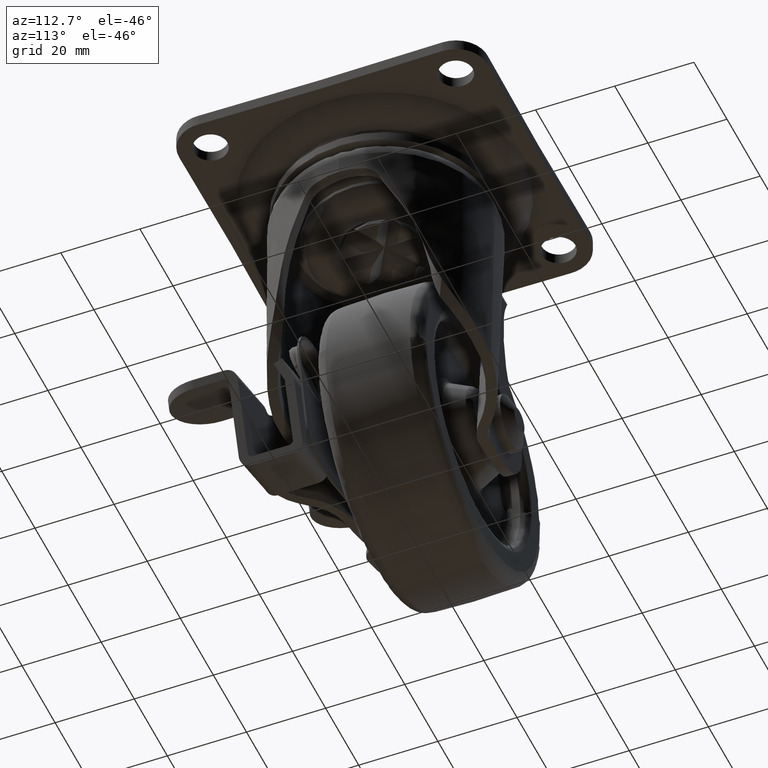
[diagram: clean part render]
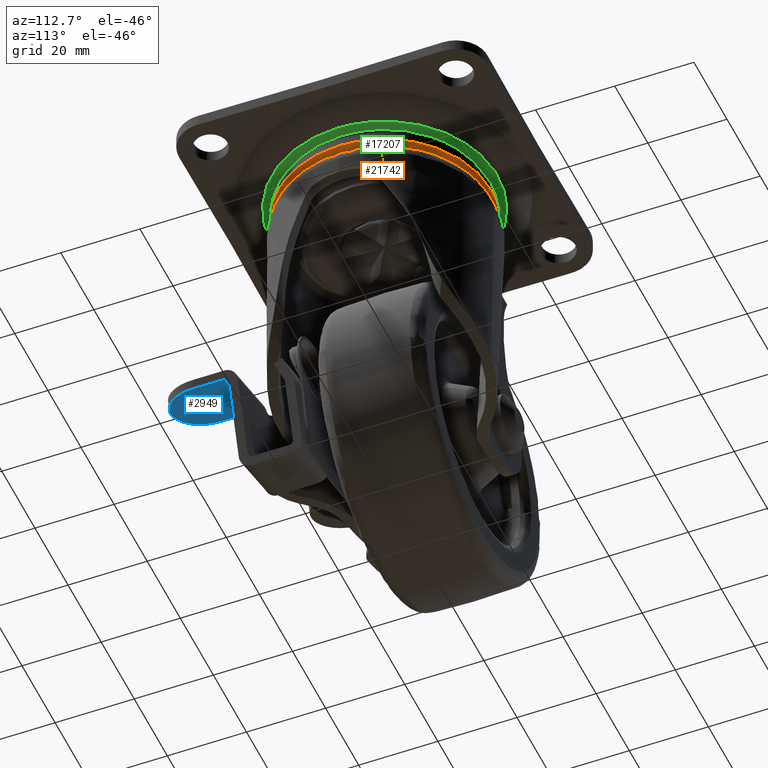
[diagram: same view with three faces highlighted in distinct colors, each labeled with its STEP entity id]
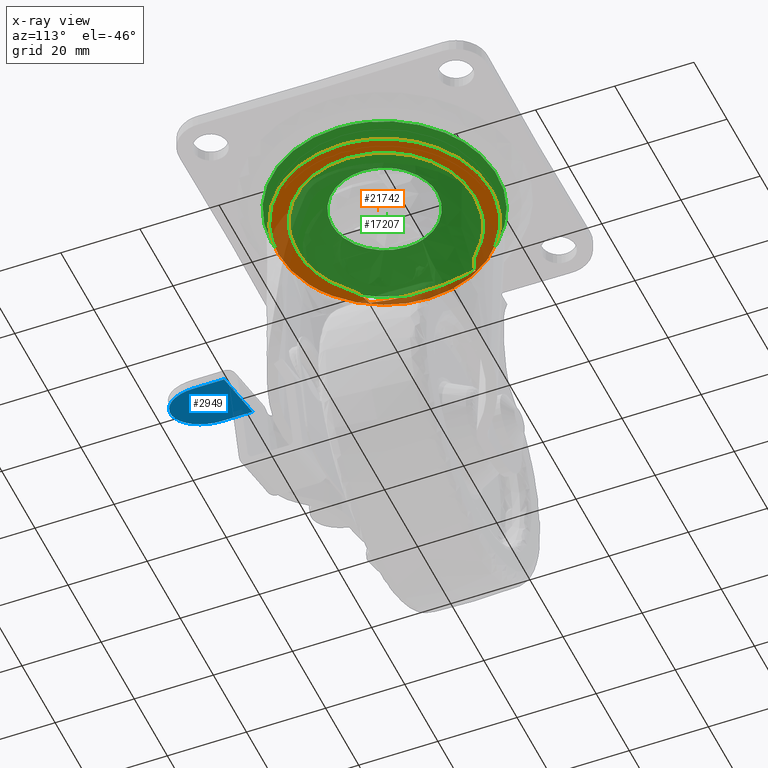
[diagram: x-ray of the same camera — body ghosted, the three highlighted faces saturated]
A machine part, auxiliary view with three faces highlighted in distinct colors.
The next image is the same camera in x-ray (body ghosted, the three faces saturated) — at least one of them is partly hidden behind the body in this view.
Their STEP definitions:

[orange] entity #21742 — the highlighted face is a freeform B-spline surface patch.
#19822=CARTESIAN_POINT('',(19.503865542615021,-18.508477186135920,-10.679282000000120));
#19823=VERTEX_POINT('',#19822);
#19829=CARTESIAN_POINT('',(26.888000000000002,0.0,-10.679282000000120));
#19830=VERTEX_POINT('',#19829);
#19831=CARTESIAN_POINT('',(26.888000000000002,0.0,-10.679282000000120));
#19832=CARTESIAN_POINT('',(26.888034766278651,-1.169543840439390,-10.679282000000111));
#19833=CARTESIAN_POINT('',(26.724746791603600,-3.668114964244473,-10.679282000000160));
#19834=CARTESIAN_POINT('',(25.912414759753510,-7.582773678796750,-10.679282000000100));
#19835=CARTESIAN_POINT('',(24.590591180742951,-11.075110877657369,-10.679282000000120));
#19836=CARTESIAN_POINT('',(22.541433642649839,-14.868582465159770,-10.679282000000150));
#19837=CARTESIAN_POINT('',(20.821498865487641,-17.120451033835181,-10.679282000000081));
#19838=CARTESIAN_POINT('',(19.503865542615021,-18.508477186135920,-10.679282000000120));
#19839=B_SPLINE_CURVE_WITH_KNOTS('',3,(#19831,#19832,#19833,#19834,#19835,#19836,#19837,#19838),.UNSPECIFIED.,.F.,.U.,(4,1,1,1,1,4),(0.000000027362614,3.508635219409179,7.495740012111181,11.961259859047360,14.672478933737070,20.413889136271450),.UNSPECIFIED.);
#19840=EDGE_CURVE('',#19830,#19823,#19839,.T.);
#19842=CARTESIAN_POINT('',(0.000003362677113,26.887999999999789,-10.679282000000120));
#19843=VERTEX_POINT('',#19842);
#19844=CARTESIAN_POINT('',(0.000003362677113,26.887999999999789,-10.679282000000120));
#19845=CARTESIAN_POINT('',(1.649841419013745,26.888167732409549,-10.679282000000139));
#19846=CARTESIAN_POINT('',(4.179493252391628,26.654395552810868,-10.679282000000111));
#19847=CARTESIAN_POINT('',(7.822308227241522,25.789268459627610,-10.679282000000130));
#19848=CARTESIAN_POINT('',(10.981059510209690,24.637155344342109,-10.679282000000111));
#19849=CARTESIAN_POINT('',(14.633725179708950,22.699293652890152,-10.679282000000111));
#19850=CARTESIAN_POINT('',(17.798249563646159,20.291558727472658,-10.679282000000230));
#19851=CARTESIAN_POINT('',(20.444336500789429,17.562782782921509,-10.679282000000009));
#19852=CARTESIAN_POINT('',(22.612964459075400,14.712667193271180,-10.679282000000271));
#19853=CARTESIAN_POINT('',(24.361299028891029,11.581737534376460,-10.679281999999890));
#19854=CARTESIAN_POINT('',(25.860165319615419,7.731556744360524,-10.679281999999990));
#19855=CARTESIAN_POINT('',(26.707149713254580,3.959595925096707,-10.679282000000759));
#19856=CARTESIAN_POINT('',(26.888019617883739,1.154866175060528,-10.679281999999320));
#19857=CARTESIAN_POINT('',(26.888000000000002,0.0,-10.679282000000120));
#19858=B_SPLINE_CURVE_WITH_KNOTS('',3,(#19844,#19845,#19846,#19847,#19848,#19849,#19850,#19851,#19852,#19853,#19854,#19855,#19856,#19857),.UNSPECIFIED.,.F.,.U.,(4,1,1,1,1,1,1,1,1,1,1,4),(0.000000114637736,4.949474445065583,7.589202534098533,11.218845624731610,15.013478306032390,19.962959880160550,23.097607094807199,26.397234392836140,30.686826273740710,33.821514668776750,38.771020473910667,42.235635994954777),.UNSPECIFIED.);
#19859=EDGE_CURVE('',#19843,#19830,#19858,.T.);
#19861=CARTESIAN_POINT('',(-26.888000000000002,0.0,-10.679282000000120));
#19862=VERTEX_POINT('',#19861);
#19863=CARTESIAN_POINT('',(-26.888000000000002,0.0,-10.679282000000120));
#19864=CARTESIAN_POINT('',(-26.888271267501899,1.869808115747313,-10.679282000000160));
#19865=CARTESIAN_POINT('',(-26.502174069577219,5.554346620242090,-10.679282000000089));
#19866=CARTESIAN_POINT('',(-24.968322088104181,10.344926229284750,-10.679282000000130));
#19867=CARTESIAN_POINT('',(-22.732720851433349,14.589763794949549,-10.679282000000111));
#19868=CARTESIAN_POINT('',(-20.291551933971039,17.798245645096419,-10.679282000000089));
#19869=CARTESIAN_POINT('',(-17.562788817052400,20.444344798111150,-10.679282000000059));
#19870=CARTESIAN_POINT('',(-14.800335382239570,22.546190692864990,-10.679282000000081));
#19871=CARTESIAN_POINT('',(-11.249899643771711,24.557639644769800,-10.679282000000221));
#19872=CARTESIAN_POINT('',(-6.269049500842757,26.374526725463902,-10.679282000000050));
#19873=CARTESIAN_POINT('',(-2.309815693727519,26.888674825915281,-10.679281999999979));
#19874=CARTESIAN_POINT('',(0.000003362677113,26.887999999999789,-10.679282000000120));
#19875=B_SPLINE_CURVE_WITH_KNOTS('',3,(#19863,#19864,#19865,#19866,#19867,#19868,#19869,#19870,#19871,#19872,#19873,#19874),.UNSPECIFIED.,.F.,.U.,(4,1,1,1,1,1,1,1,1,4),(0.000000114406774,5.609387263307603,11.053860425037580,15.013479653447529,19.962961673761530,23.097609164697531,26.397236762571598,30.356865768622260,35.306364626762523,42.235639785481553),.UNSPECIFIED.);
#19876=EDGE_CURVE('',#19862,#19843,#19875,.T.);
#19878=CARTESIAN_POINT('',(-17.362712396301550,-20.530484817063218,-10.679282000000120));
#19879=VERTEX_POINT('',#19878);
#19880=CARTESIAN_POINT('',(-17.362712396301550,-20.530484817063218,-10.679282000000120));
#19881=CARTESIAN_POINT('',(-18.477547622254040,-19.587732426832861,-10.679282000000120));
#19882=CARTESIAN_POINT('',(-20.899287394690830,-17.175584372695390,-10.679282000000130));
#19883=CARTESIAN_POINT('',(-23.549422875501570,-13.279644816668061,-10.679282000000130));
#19884=CARTESIAN_POINT('',(-25.255113167360989,-9.432526693824860,-10.679282000000120));
#19885=CARTESIAN_POINT('',(-26.517478680882402,-5.231545113345966,-10.679282000000070));
#19886=CARTESIAN_POINT('',(-26.888498699279239,-2.129258889064473,-10.679282000000191));
#19887=CARTESIAN_POINT('',(-26.888000000000002,0.0,-10.679282000000120));
#19888=B_SPLINE_CURVE_WITH_KNOTS('',3,(#19880,#19881,#19882,#19883,#19884,#19885,#19886,#19887),.UNSPECIFIED.,.F.,.U.,(4,1,1,1,1,4),(0.000000039015255,4.380071117644192,10.220170978073289,14.052717356325321,16.972776875279042,23.360383323077340),.UNSPECIFIED.);
#19889=EDGE_CURVE('',#19879,#19862,#19888,.T.);
#19926=CARTESIAN_POINT('',(-0.000003362677461,-26.887999999999789,-10.679282000000120));
#19927=VERTEX_POINT('',#19926);
#19928=CARTESIAN_POINT('',(-0.000003362677461,-26.887999999999789,-10.679282000000120));
#19929=CARTESIAN_POINT('',(-2.015375703552460,-26.888447403062131,-10.679282000000221));
#19930=CARTESIAN_POINT('',(-5.062736329903994,-26.543646384990989,-10.679281999999930));
#19931=CARTESIAN_POINT('',(-9.129226183268747,-25.363454361553810,-10.679282000000310));
#19932=CARTESIAN_POINT('',(-13.066867586233160,-23.671635001114598,-10.679281999999979));
#19933=CARTESIAN_POINT('',(-15.786623127753680,-21.863985177579611,-10.679282000000191));
#19934=CARTESIAN_POINT('',(-17.362712396301550,-20.530484817063218,-10.679282000000120));
#19935=B_SPLINE_CURVE_WITH_KNOTS('',3,(#19928,#19929,#19930,#19931,#19932,#19933,#19934),.UNSPECIFIED.,.F.,.U.,(4,1,1,1,4),(0.000000020932887,6.045984351372637,9.142705464890836,12.681801905030669,18.875254096918489),.UNSPECIFIED.);
#19936=EDGE_CURVE('',#19927,#19879,#19935,.T.);
#19938=CARTESIAN_POINT('',(19.503865542615021,-18.508477186135920,-10.679282000000120));
#19939=CARTESIAN_POINT('',(18.135031767801770,-19.951544009734022,-10.679282000000120));
#19940=CARTESIAN_POINT('',(15.992905045248900,-21.757245947280481,-10.679282000000130));
#19941=CARTESIAN_POINT('',(12.199423881585780,-24.058523046364851,-10.679282000000150));
#19942=CARTESIAN_POINT('',(8.848314793370371,-25.510913352480731,-10.679282000000031));
#19943=CARTESIAN_POINT('',(4.489304374128034,-26.625897480612320,-10.679282000000271));
#19944=CARTESIAN_POINT('',(1.648000960830044,-26.888179817504170,-10.679282000000040));
#19945=CARTESIAN_POINT('',(-0.000003362677461,-26.887999999999789,-10.679282000000120));
#19946=B_SPLINE_CURVE_WITH_KNOTS('',3,(#19938,#19939,#19940,#19941,#19942,#19943,#19944,#19945),.UNSPECIFIED.,.F.,.U.,(4,1,1,1,1,4),(0.000000031624854,5.966887557739332,8.353644860347911,13.297610479135860,16.877763380984600,21.821751678115412),.UNSPECIFIED.);
#19947=EDGE_CURVE('',#19823,#19927,#19946,.T.);
#21620=CARTESIAN_POINT('',(29.574111600582292,-29.574111600582061,-10.679282000000120));
#21621=CARTESIAN_POINT('',(-29.574112562172111,-29.574111600582061,-10.679282000000120));
#21622=CARTESIAN_POINT('',(29.574111600582292,29.574112562171880,-10.679282000000120));
#21623=CARTESIAN_POINT('',(-29.574112562172111,29.574112562171880,-10.679282000000120));
#21624=B_SPLINE_SURFACE_WITH_KNOTS('',1,1,((#21620,#21622),(#21621,#21623)),.UNSPECIFIED.,.F.,.F.,.U.,(2,2),(2,2),(0.0,59.148224162754410),(0.0,59.148224162753941),.UNSPECIFIED.);
#21625=ORIENTED_EDGE('',*,*,#19876,.T.);
#21626=ORIENTED_EDGE('',*,*,#19859,.T.);
#21627=ORIENTED_EDGE('',*,*,#19840,.T.);
#21628=ORIENTED_EDGE('',*,*,#19947,.T.);
#21629=ORIENTED_EDGE('',*,*,#19936,.T.);
#21630=ORIENTED_EDGE('',*,*,#19889,.T.);
#21631=EDGE_LOOP('',(#21625,#21626,#21627,#21628,#21629,#21630));
#21632=FACE_OUTER_BOUND('',#21631,.T.);
#21633=CARTESIAN_POINT('',(-22.797527504923899,13.398797792103160,-10.679282000000120));
#21634=VERTEX_POINT('',#21633);
#21635=CARTESIAN_POINT('',(-22.797527504923899,-13.398797792103160,-10.679282000000120));
#21636=VERTEX_POINT('',#21635);
#21637=CARTESIAN_POINT('',(-22.797527504923899,13.398797792103160,-10.679282000000120));
#21638=CARTESIAN_POINT('',(-23.645217901609080,9.978438628420866,-10.679282000000081));
#21639=CARTESIAN_POINT('',(-24.416850983434351,4.796929287381611,-10.679282000000160));
#21640=CARTESIAN_POINT('',(-24.485339880255399,-4.233126793123027,-10.679282000000070));
#21641=CARTESIAN_POINT('',(-23.713224372311998,-9.704828610800927,-10.679282000000191));
#21642=CARTESIAN_POINT('',(-22.797527504923899,-13.398797792103160,-10.679282000000120));
#21643=B_SPLINE_CURVE_WITH_KNOTS('',3,(#21637,#21638,#21639,#21640,#21641,#21642),.UNSPECIFIED.,.F.,.U.,(4,1,1,4),(6.904152E-009,10.571403696179701,15.645654997697131,27.062769204439061),.UNSPECIFIED.);
#21644=EDGE_CURVE('',#21634,#21636,#21643,.T.);
#21645=ORIENTED_EDGE('',*,*,#21644,.T.);
#21646=CARTESIAN_POINT('',(-17.214441086970751,-16.129979643924550,-10.679282000000120));
#21647=VERTEX_POINT('',#21646);
#21648=CARTESIAN_POINT('',(-22.797527504923899,-13.398797792103160,-10.679282000000120));
#21649=CARTESIAN_POINT('',(-22.276139148350389,-13.472530814729270,-10.679282000000111));
#21650=CARTESIAN_POINT('',(-21.116083848401679,-13.730854053324190,-10.679282000000120));
#21651=CARTESIAN_POINT('',(-19.163336462330850,-14.547173085697191,-10.679282000000139));
#21652=CARTESIAN_POINT('',(-17.876185271135419,-15.488615274973190,-10.679282000000089));
#21653=CARTESIAN_POINT('',(-17.214441086970751,-16.129979643924550,-10.679282000000120));
#21654=B_SPLINE_CURVE_WITH_KNOTS('',3,(#21648,#21649,#21650,#21651,#21652,#21653),.UNSPECIFIED.,.F.,.U.,(4,1,1,4),(0.000000029805333,1.579741568621220,3.554401686633980,6.318966185068758),.UNSPECIFIED.);
#21655=EDGE_CURVE('',#21636,#21647,#21654,.T.);
#21656=ORIENTED_EDGE('',*,*,#21655,.T.);
#21657=CARTESIAN_POINT('',(-1.474192120225080,-22.499179236834799,-10.679282000000120));
#21658=VERTEX_POINT('',#21657);
#21659=CARTESIAN_POINT('',(-17.214441086970751,-16.129979643924550,-10.679282000000120));
#21660=CARTESIAN_POINT('',(-16.465458195323190,-16.855214209778019,-10.679282000000130));
#21661=CARTESIAN_POINT('',(-14.519565161595670,-18.494769983513830,-10.679282000000130));
#21662=CARTESIAN_POINT('',(-11.457243346951561,-20.296542002779731,-10.679282000000059));
#21663=CARTESIAN_POINT('',(-8.233822319314738,-21.533466298609358,-10.679282000000180));
#21664=CARTESIAN_POINT('',(-5.055209172687867,-22.301948962786248,-10.679281999999990));
#21665=CARTESIAN_POINT('',(-2.788745254682120,-22.499658226117621,-10.679282000000230));
#21666=CARTESIAN_POINT('',(-1.474192120225080,-22.499179236834799,-10.679282000000120));
#21667=B_SPLINE_CURVE_WITH_KNOTS('',3,(#21659,#21660,#21661,#21662,#21663,#21664,#21665,#21666),.UNSPECIFIED.,.F.,.U.,(4,1,1,1,1,4),(0.000000027847925,3.127707797637916,7.615313781979614,10.607010831961810,13.462764105874580,17.406401177718791),.UNSPECIFIED.);
#21668=EDGE_CURVE('',#21647,#21658,#21667,.T.);
#21669=ORIENTED_EDGE('',*,*,#21668,.T.);
#21670=CARTESIAN_POINT('',(0.000960000000105,-22.499179236834799,-10.679282000000120));
#21671=VERTEX_POINT('',#21670);
#21672=CARTESIAN_POINT('',(-1.474192120225080,-22.499179236834799,-10.679282000000120));
#21673=CARTESIAN_POINT('',(0.000960000000105,-22.499179236834799,-10.679282000000120));
#21674=QUASI_UNIFORM_CURVE('',1,(#21672,#21673),.UNSPECIFIED.,.F.,.U.);
#21675=EDGE_CURVE('',#21658,#21671,#21674,.T.);
#21676=ORIENTED_EDGE('',*,*,#21675,.T.);
#21677=CARTESIAN_POINT('',(22.499960000000002,0.0,-10.679282000000120));
#21678=VERTEX_POINT('',#21677);
#21679=CARTESIAN_POINT('',(0.000960000000105,-22.499179236834799,-10.679282000000120));
#21680=CARTESIAN_POINT('',(1.519544319019049,-22.499373363325429,-10.679282000000120));
#21681=CARTESIAN_POINT('',(4.188482226035767,-22.227905635816722,-10.679282000000120));
#21682=CARTESIAN_POINT('',(8.181461940516689,-21.083262034136521,-10.679282000000120));
#21683=CARTESIAN_POINT('',(11.963020742717450,-19.237801262456429,-10.679282000000180));
#21684=CARTESIAN_POINT('',(15.151458287044610,-16.780689018259402,-10.679282000000081));
#21685=CARTESIAN_POINT('',(17.966713509935801,-13.731305627568450,-10.679282000000009));
#21686=CARTESIAN_POINT('',(19.976442620865441,-10.621592355065831,-10.679282000000409));
#21687=CARTESIAN_POINT('',(21.265122973577189,-7.509387145511053,-10.679282000000040));
#21688=CARTESIAN_POINT('',(22.219540880472309,-4.141431492588562,-10.679282000000130));
#21689=CARTESIAN_POINT('',(22.500389498313311,-1.748718311678798,-10.679282000000160));
#21690=CARTESIAN_POINT('',(22.499960000000002,0.0,-10.679282000000120));
#21691=B_SPLINE_CURVE_WITH_KNOTS('',3,(#21679,#21680,#21681,#21682,#21683,#21684,#21685,#21686,#21687,#21688,#21689,#21690),.UNSPECIFIED.,.F.,.U.,(4,1,1,1,1,1,1,1,1,4),(0.000000121797704,4.555725460716474,8.007070261248238,12.424785419647041,17.118608889772720,20.017676793840700,24.849530063337451,28.162826617161560,30.095561483897079,35.341571100536171),.UNSPECIFIED.);
#21692=EDGE_CURVE('',#21671,#21678,#21691,.T.);
#21693=ORIENTED_EDGE('',*,*,#21692,.T.);
#21694=CARTESIAN_POINT('',(0.000960000000102,22.499179236834799,-10.679282000000120));
#21695=VERTEX_POINT('',#21694);
#21696=CARTESIAN_POINT('',(22.499960000000002,0.0,-10.679282000000120));
#21697=CARTESIAN_POINT('',(22.500217573064131,1.610620382166461,-10.679282000000160));
#21698=CARTESIAN_POINT('',(22.187358682715121,4.509639798527457,-10.679282000000040));
#21699=CARTESIAN_POINT('',(21.010953630537699,8.303577746416776,-10.679282000000221));
#21700=CARTESIAN_POINT('',(19.544891657526389,11.284078359066971,-10.679282000000020));
#21701=CARTESIAN_POINT('',(17.974927394511941,13.618106309495561,-10.679282000000130));
#21702=CARTESIAN_POINT('',(16.025562585415461,15.892143590490640,-10.679282000000210));
#21703=CARTESIAN_POINT('',(13.507299838325491,18.132840638664071,-10.679282000000150));
#21704=CARTESIAN_POINT('',(10.523654638054390,19.983877680256310,-10.679281999999841));
#21705=CARTESIAN_POINT('',(7.387847244299644,21.328041250907589,-10.679282000000351));
#21706=CARTESIAN_POINT('',(4.004427020296995,22.253234633694731,-10.679281999999770));
#21707=CARTESIAN_POINT('',(1.427502173444245,22.499334992917831,-10.679282000000320));
#21708=CARTESIAN_POINT('',(0.000960000000102,22.499179236834799,-10.679282000000120));
#21709=B_SPLINE_CURVE_WITH_KNOTS('',3,(#21696,#21697,#21698,#21699,#21700,#21701,#21702,#21703,#21704,#21705,#21706,#21707,#21708),.UNSPECIFIED.,.F.,.U.,(4,1,1,1,1,1,1,1,1,1,4),(0.000000121726913,4.831829513118784,8.697339208950638,11.872577129769560,14.771705042692981,17.118608674336031,20.845972912335782,24.849529749950481,27.610611076119071,31.061965254041208,35.341570654539943),.UNSPECIFIED.);
#21710=EDGE_CURVE('',#21678,#21695,#21709,.T.);
#21711=ORIENTED_EDGE('',*,*,#21710,.T.);
#21712=CARTESIAN_POINT('',(-1.474192120225070,22.499179236834799,-10.679282000000120));
#21713=VERTEX_POINT('',#21712);
#21714=CARTESIAN_POINT('',(0.000960000000102,22.499179236834799,-10.679282000000120));
#21715=CARTESIAN_POINT('',(-1.474192120225070,22.499179236834799,-10.679282000000120));
#21716=QUASI_UNIFORM_CURVE('',1,(#21714,#21715),.UNSPECIFIED.,.F.,.U.);
#21717=EDGE_CURVE('',#21695,#21713,#21716,.T.);
#21718=ORIENTED_EDGE('',*,*,#21717,.T.);
#21719=CARTESIAN_POINT('',(-17.214441086970801,16.129979643924500,-10.679282000000120));
#21720=VERTEX_POINT('',#21719);
#21721=CARTESIAN_POINT('',(-1.474192120225070,22.499179236834799,-10.679282000000120));
#21722=CARTESIAN_POINT('',(-3.468769986790806,22.500426438714300,-10.679282000000120));
#21723=CARTESIAN_POINT('',(-6.550861041575425,22.090057578181071,-10.679282000000111));
#21724=CARTESIAN_POINT('',(-10.797993100523490,20.604811648576931,-10.679282000000130));
#21725=CARTESIAN_POINT('',(-14.150829352702130,18.765559915665872,-10.679282000000111));
#21726=CARTESIAN_POINT('',(-16.270129535510421,17.044481141604560,-10.679282000000139));
#21727=CARTESIAN_POINT('',(-17.214441086970801,16.129979643924500,-10.679282000000120));
#21728=B_SPLINE_CURVE_WITH_KNOTS('',3,(#21721,#21722,#21723,#21724,#21725,#21726,#21727),.UNSPECIFIED.,.F.,.U.,(4,1,1,1,4),(0.000000027849321,5.983473589516636,9.247159153341295,13.462788973494840,17.406433329729900),.UNSPECIFIED.);
#21729=EDGE_CURVE('',#21713,#21720,#21728,.T.);
#21730=ORIENTED_EDGE('',*,*,#21729,.T.);
#21731=CARTESIAN_POINT('',(-17.214441086970801,16.129979643924500,-10.679282000000120));
#21732=CARTESIAN_POINT('',(-17.710842349063839,15.649081955967100,-10.679282000000150));
#21733=CARTESIAN_POINT('',(-18.647371456520808,14.913138643910081,-10.679282000000081));
#21734=CARTESIAN_POINT('',(-20.511501919818020,13.920251268203490,-10.679282000000130));
#21735=CARTESIAN_POINT('',(-21.885016774259011,13.527585347471151,-10.679282000000130));
#21736=CARTESIAN_POINT('',(-22.797527504923899,13.398797792103160,-10.679282000000120));
#21737=B_SPLINE_CURVE_WITH_KNOTS('',3,(#21731,#21732,#21733,#21734,#21735,#21736),.UNSPECIFIED.,.F.,.U.,(4,1,1,4),(0.000000029794761,2.073408928993058,3.554389104010710,6.318943809384388),.UNSPECIFIED.);
#21738=EDGE_CURVE('',#21720,#21634,#21737,.T.);
#21739=ORIENTED_EDGE('',*,*,#21738,.T.);
#21740=EDGE_LOOP('',(#21645,#21656,#21669,#21676,#21693,#21711,#21718,#21730,#21739));
#21741=FACE_BOUND('',#21740,.T.);
#21742=ADVANCED_FACE('',(#21632,#21741),#21624,.T.);

[blue] entity #2949 — the highlighted face is a freeform B-spline surface patch.
#711=CARTESIAN_POINT('',(6.159242446251650,-51.208029000000003,-61.107860482847997));
#712=VERTEX_POINT('',#711);
#713=CARTESIAN_POINT('',(-2.414775000000000,-42.208029000000003,-58.371768999999901));
#714=VERTEX_POINT('',#713);
#715=CARTESIAN_POINT('',(6.159242446251650,-51.208029000000003,-61.107860482847997));
#716=CARTESIAN_POINT('',(5.527920790191182,-51.208162086730873,-60.906396721325287));
#717=CARTESIAN_POINT('',(4.475790674205281,-51.085449994619033,-60.570646967228377));
#718=CARTESIAN_POINT('',(2.860386619618170,-50.571120240529382,-60.055148450597571));
#719=CARTESIAN_POINT('',(1.231475312510367,-49.684283084793122,-59.535339576678780));
#720=CARTESIAN_POINT('',(-0.120703033803030,-48.429155245780919,-59.103840144839580));
#721=CARTESIAN_POINT('',(-1.176283055774700,-46.953893524398232,-58.766989476446717));
#722=CARTESIAN_POINT('',(-1.834287949813973,-45.602513369831229,-58.557010712403077));
#723=CARTESIAN_POINT('',(-2.304555814329449,-43.938310026472983,-58.406941517089813));
#724=CARTESIAN_POINT('',(-2.414869228950472,-42.833888763734222,-58.371738930196109));
#725=CARTESIAN_POINT('',(-2.414775000000000,-42.208029000000003,-58.371768999999901));
#726=B_SPLINE_CURVE_WITH_KNOTS('',3,(#715,#716,#717,#718,#719,#720,#721,#722,#723,#724,#725),.UNSPECIFIED.,.F.,.U.,(4,1,1,1,1,1,1,1,4),(0.000000198038880,1.988040734186317,3.313418867587931,5.301476328013084,7.731288435081716,8.946196145458803,10.823837984081450,12.259685932547510,14.137254642881560),.UNSPECIFIED.);
#727=EDGE_CURVE('',#712,#714,#726,.T.);
#775=CARTESIAN_POINT('',(14.733261386545200,-42.208029000000003,-63.843952442466303));
#776=VERTEX_POINT('',#775);
#777=CARTESIAN_POINT('',(14.733261386545200,-42.208029000000003,-63.843952442466303));
#778=CARTESIAN_POINT('',(14.733747147343040,-43.165316235952147,-63.844107455678149));
#779=CARTESIAN_POINT('',(14.507222610472949,-44.637524031682453,-63.771820239110973));
#780=CARTESIAN_POINT('',(13.661151431554460,-46.709357592150369,-63.501826836247631));
#781=CARTESIAN_POINT('',(12.634211348803550,-48.220293157963269,-63.174115581703262));
#782=CARTESIAN_POINT('',(11.400646403308320,-49.379147667393603,-62.780467380950242));
#783=CARTESIAN_POINT('',(10.187758026899230,-50.196374554668687,-62.393417368853363));
#784=CARTESIAN_POINT('',(8.508857944533801,-50.964846873693801,-61.857656362445653));
#785=CARTESIAN_POINT('',(7.071212045747023,-51.208583174482833,-61.398883013352773));
#786=CARTESIAN_POINT('',(6.159242446251650,-51.208029000000003,-61.107860482847997));
#787=B_SPLINE_CURVE_WITH_KNOTS('',3,(#777,#778,#779,#780,#781,#782,#783,#784,#785,#786),.UNSPECIFIED.,.F.,.U.,(4,1,1,1,1,1,1,4),(0.000000197876687,2.871621153055507,4.417910269271181,6.737305326767578,8.393969725665009,9.608894523361631,11.265640041109810,14.137255645887590),.UNSPECIFIED.);
#788=EDGE_CURVE('',#776,#712,#787,.T.);
#2303=CARTESIAN_POINT('',(14.733261386545200,-34.383177999999887,-63.843952442466303));
#2304=VERTEX_POINT('',#2303);
#2317=CARTESIAN_POINT('',(-2.414775000000000,-34.383177999999887,-58.371768999999901));
#2318=VERTEX_POINT('',#2317);
#2319=CARTESIAN_POINT('',(-2.414775000000000,-34.383177999999887,-58.371768999999901));
#2320=CARTESIAN_POINT('',(14.733261386545200,-34.383177999999887,-63.843952442466303));
#2321=QUASI_UNIFORM_CURVE('',1,(#2319,#2320),.UNSPECIFIED.,.F.,.U.);
#2322=EDGE_CURVE('',#2318,#2304,#2321,.T.);
#2929=CARTESIAN_POINT('',(15.589805448869930,-52.048432110005962,-64.117287892073435));
#2930=CARTESIAN_POINT('',(-3.271319828901676,-52.048432110005962,-58.098433305767081));
#2931=CARTESIAN_POINT('',(15.589805448869930,-33.542777447234073,-64.117287892073435));
#2932=CARTESIAN_POINT('',(-3.271319828901677,-33.542777447234073,-58.098433305767081));
#2933=B_SPLINE_SURFACE_WITH_KNOTS('',1,1,((#2929,#2931),(#2930,#2932)),.UNSPECIFIED.,.F.,.F.,.U.,(2,2),(2,2),(0.0,19.798198334063031),(0.0,18.505654662771889),.UNSPECIFIED.);
#2934=ORIENTED_EDGE('',*,*,#788,.T.);
#2935=ORIENTED_EDGE('',*,*,#727,.T.);
#2936=CARTESIAN_POINT('',(-2.414775000000000,-42.208029000000003,-58.371768999999901));
#2937=CARTESIAN_POINT('',(-2.414775000000000,-34.383177999999887,-58.371768999999901));
#2938=QUASI_UNIFORM_CURVE('',1,(#2936,#2937),.UNSPECIFIED.,.F.,.U.);
#2939=EDGE_CURVE('',#714,#2318,#2938,.T.);
#2940=ORIENTED_EDGE('',*,*,#2939,.T.);
#2941=ORIENTED_EDGE('',*,*,#2322,.T.);
#2942=CARTESIAN_POINT('',(14.733261386545200,-42.208029000000003,-63.843952442466303));
#2943=CARTESIAN_POINT('',(14.733261386545200,-34.383177999999887,-63.843952442466303));
#2944=QUASI_UNIFORM_CURVE('',1,(#2942,#2943),.UNSPECIFIED.,.F.,.U.);
#2945=EDGE_CURVE('',#776,#2304,#2944,.T.);
#2946=ORIENTED_EDGE('',*,*,#2945,.F.);
#2947=EDGE_LOOP('',(#2934,#2935,#2940,#2941,#2946));
#2948=FACE_OUTER_BOUND('',#2947,.T.);
#2949=ADVANCED_FACE('',(#2948),#2933,.T.);

[green] entity #17207 — the highlighted face is a freeform B-spline surface patch.
#15472=CARTESIAN_POINT('',(9.684105408501802,9.189533209667433,-6.357000999999922));
#15473=VERTEX_POINT('',#15472);
#15479=CARTESIAN_POINT('',(13.350358000000011,0.0,-6.357000999999920));
#15480=VERTEX_POINT('',#15479);
#15481=CARTESIAN_POINT('',(13.350358000000011,0.0,-6.357000999999920));
#15482=CARTESIAN_POINT('',(13.350532358613100,0.950227847807780,-6.357000999999915));
#15483=CARTESIAN_POINT('',(13.197479831890799,2.375456558698002,-6.357000999999936));
#15484=CARTESIAN_POINT('',(12.556221377563411,4.721193140419021,-6.357000999999918));
#15485=CARTESIAN_POINT('',(11.530828671714810,6.939388656437955,-6.357000999999924));
#15486=CARTESIAN_POINT('',(10.338285531433920,8.500363935599944,-6.357000999999914));
#15487=CARTESIAN_POINT('',(9.684105408501802,9.189533209667433,-6.357000999999922));
#15488=B_SPLINE_CURVE_WITH_KNOTS('',3,(#15481,#15482,#15483,#15484,#15485,#15486,#15487),.UNSPECIFIED.,.F.,.U.,(4,1,1,1,4),(0.000000038997198,2.850645075771916,4.275973465907004,7.284977502029292,10.135622538802810),.UNSPECIFIED.);
#15489=EDGE_CURVE('',#15480,#15473,#15488,.T.);
#15491=CARTESIAN_POINT('',(8.621014494799271,-10.193468346007400,-6.357000999999920));
#15492=VERTEX_POINT('',#15491);
#15493=CARTESIAN_POINT('',(8.621014494799271,-10.193468346007400,-6.357000999999920));
#15494=CARTESIAN_POINT('',(9.497634929611028,-9.452521212752462,-6.357000999999920));
#15495=CARTESIAN_POINT('',(10.688096024235900,-8.147539470001799,-6.357000999999920));
#15496=CARTESIAN_POINT('',(12.158626155466180,-5.711082722129985,-6.357000999999910));
#15497=CARTESIAN_POINT('',(13.105342173069859,-3.141247474924123,-6.357000999999965));
#15498=CARTESIAN_POINT('',(13.350532132696159,-1.026953967717165,-6.357000999999895));
#15499=CARTESIAN_POINT('',(13.350358000000011,0.0,-6.357000999999920));
#15500=B_SPLINE_CURVE_WITH_KNOTS('',3,(#15493,#15494,#15495,#15496,#15497,#15498,#15499),.UNSPECIFIED.,.F.,.U.,(4,1,1,1,4),(0.000000032101035,3.443336408326300,5.255636767047769,8.517712683012737,11.598591080569280),.UNSPECIFIED.);
#15501=EDGE_CURVE('',#15492,#15480,#15500,.T.);
#15545=CARTESIAN_POINT('',(0.000360327797656,-13.349999999999801,-6.357000999999920));
#15546=VERTEX_POINT('',#15545);
#15547=CARTESIAN_POINT('',(0.000360327797656,-13.349999999999801,-6.357000999999920));
#15548=CARTESIAN_POINT('',(0.781333547031484,-13.350070071476280,-6.357000999999912));
#15549=CARTESIAN_POINT('',(2.294444510211450,-13.216843596968751,-6.357000999999936));
#15550=CARTESIAN_POINT('',(4.567656637548114,-12.617647663966681,-6.357000999999906));
#15551=CARTESIAN_POINT('',(6.703304462948472,-11.629670109094061,-6.357000999999915));
#15552=CARTESIAN_POINT('',(8.024743085345254,-10.697828291434760,-6.357000999999936));
#15553=CARTESIAN_POINT('',(8.621014494799271,-10.193468346007400,-6.357000999999920));
#15554=B_SPLINE_CURVE_WITH_KNOTS('',3,(#15547,#15548,#15549,#15550,#15551,#15552,#15553),.UNSPECIFIED.,.F.,.U.,(4,1,1,1,4),(0.000000035931249,2.342918535515203,4.539430494074305,7.028755534715570,9.371674034332012),.UNSPECIFIED.);
#15555=EDGE_CURVE('',#15546,#15492,#15554,.T.);
#15557=CARTESIAN_POINT('',(-13.349641999999999,0.0,-6.357000999999920));
#15558=VERTEX_POINT('',#15557);
#15559=CARTESIAN_POINT('',(-13.349641999999999,0.0,-6.357000999999920));
#15560=CARTESIAN_POINT('',(-13.350176856464619,-1.256092531992410,-6.357000999999917));
#15561=CARTESIAN_POINT('',(-13.108925479354170,-2.948702675332835,-6.357000999999921));
#15562=CARTESIAN_POINT('',(-12.308422047873970,-5.275279691062712,-6.357000999999921));
#15563=CARTESIAN_POINT('',(-11.445943031396149,-6.988871561256947,-6.357000999999910));
#15564=CARTESIAN_POINT('',(-10.216063319204990,-8.668507743567124,-6.357000999999942));
#15565=CARTESIAN_POINT('',(-8.908269370024696,-9.992433280829040,-6.357000999999924));
#15566=CARTESIAN_POINT('',(-7.398635273629899,-11.170549755320490,-6.357000999999919));
#15567=CARTESIAN_POINT('',(-5.300339634072830,-12.359617990848999,-6.357000999999925));
#15568=CARTESIAN_POINT('',(-2.730144734510731,-13.173702416415930,-6.357000999999912));
#15569=CARTESIAN_POINT('',(-0.818768361928086,-13.350050169027330,-6.357000999999927));
#15570=CARTESIAN_POINT('',(0.000360327797656,-13.349999999999801,-6.357000999999920));
#15571=B_SPLINE_CURVE_WITH_KNOTS('',3,(#15559,#15560,#15561,#15562,#15563,#15564,#15565,#15566,#15567,#15568,#15569,#15570),.UNSPECIFIED.,.F.,.U.,(4,1,1,1,1,1,1,1,1,4),(0.000000135806843,3.768073899341669,5.078736521884062,7.372386465247315,9.502152895322963,11.304252313953350,12.942550008869800,15.236200135092700,18.512845843210670,20.970263853379890),.UNSPECIFIED.);
#15572=EDGE_CURVE('',#15558,#15546,#15571,.T.);
#15574=CARTESIAN_POINT('',(0.000355672202512,13.349999999999801,-6.357000999999920));
#15575=VERTEX_POINT('',#15574);
#15576=CARTESIAN_POINT('',(0.000355672202512,13.349999999999801,-6.357000999999920));
#15577=CARTESIAN_POINT('',(-0.928011257744075,13.350144619973349,-6.357000999999920));
#15578=CARTESIAN_POINT('',(-2.457009932219024,13.189815939187330,-6.357000999999928));
#15579=CARTESIAN_POINT('',(-4.826799573992421,12.518401927494590,-6.357000999999932));
#15580=CARTESIAN_POINT('',(-7.004445407536817,11.472126106823319,-6.357000999999880));
#15581=CARTESIAN_POINT('',(-9.231653123636022,9.777567182672307,-6.357000999999947));
#15582=CARTESIAN_POINT('',(-10.882440489066891,7.863795975929306,-6.357000999999915));
#15583=CARTESIAN_POINT('',(-12.067917585979570,5.829414520510649,-6.357000999999915));
#15584=CARTESIAN_POINT('',(-13.049650941879049,3.330906732122769,-6.357000999999924));
#15585=CARTESIAN_POINT('',(-13.350187189297070,1.310700229900560,-6.357000999999917));
#15586=CARTESIAN_POINT('',(-13.349641999999999,0.0,-6.357000999999920));
#15587=B_SPLINE_CURVE_WITH_KNOTS('',3,(#15576,#15577,#15578,#15579,#15580,#15581,#15582,#15583,#15584,#15585,#15586),.UNSPECIFIED.,.F.,.U.,(4,1,1,1,1,1,1,1,4),(0.000000136618070,2.785079870841173,4.587236058622146,7.372385543690767,9.993705376553082,12.942548388331010,14.908544353772349,17.038356357293502,20.970261229393039),.UNSPECIFIED.);
#15588=EDGE_CURVE('',#15575,#15558,#15587,.T.);
#15590=CARTESIAN_POINT('',(9.684105408501802,9.189533209667433,-6.357000999999922));
#15591=CARTESIAN_POINT('',(9.101512277101127,9.803598945713224,-6.357000999999933));
#15592=CARTESIAN_POINT('',(8.032704160645901,10.734140491938319,-6.357000999999908));
#15593=CARTESIAN_POINT('',(6.161956876866563,11.901717400187181,-6.357000999999930));
#15594=CARTESIAN_POINT('',(4.183995797942803,12.751586308408710,-6.357000999999928));
#15595=CARTESIAN_POINT('',(2.031842433582177,13.251480522607469,-6.357000999999917));
#15596=CARTESIAN_POINT('',(0.621081589020516,13.350016370482299,-6.357000999999941));
#15597=CARTESIAN_POINT('',(0.000355672202512,13.349999999999801,-6.357000999999920));
#15598=B_SPLINE_CURVE_WITH_KNOTS('',3,(#15590,#15591,#15592,#15593,#15594,#15595,#15596,#15597),.UNSPECIFIED.,.F.,.U.,(4,1,1,1,1,4),(0.000000037528084,2.539366874516393,4.232288511814115,6.602353838102681,8.972447874768077,10.834642312368819),.UNSPECIFIED.);
#15599=EDGE_CURVE('',#15473,#15575,#15598,.T.);
#16933=CARTESIAN_POINT('',(17.372505302938109,22.566477031122741,-6.357000999695702));
#16934=VERTEX_POINT('',#16933);
#16935=CARTESIAN_POINT('',(28.478936528647850,0.0,-6.357000999999910));
#16936=VERTEX_POINT('',#16935);
#16937=CARTESIAN_POINT('',(17.372505302938109,22.566477031122741,-6.357000999695702));
#16938=CARTESIAN_POINT('',(19.308231852778469,21.077236415547020,-6.357000999748743));
#16939=CARTESIAN_POINT('',(21.775772106158829,18.611482405205500,-6.357000999816295));
#16940=CARTESIAN_POINT('',(24.553104266098810,14.584938161961020,-6.357000999892382));
#16941=CARTESIAN_POINT('',(26.233983513911159,11.318419243433929,-6.357000999938425));
#16942=CARTESIAN_POINT('',(27.421428505415580,7.916793118217020,-6.357000999970921));
#16943=CARTESIAN_POINT('',(28.257230996337789,4.205981526406010,-6.357000999993872));
#16944=CARTESIAN_POINT('',(28.479072567554500,1.628148359070859,-6.357000999999943));
#16945=CARTESIAN_POINT('',(28.478936528647850,0.0,-6.357000999999910));
#16946=B_SPLINE_CURVE_WITH_KNOTS('',3,(#16937,#16938,#16939,#16940,#16941,#16942,#16943,#16944,#16945),.UNSPECIFIED.,.F.,.U.,(4,1,1,1,1,1,4),(0.000000040664634,7.326654095901205,10.379421489384439,14.653266322346489,18.316620525967569,21.165887723488229,26.050309626550298),.UNSPECIFIED.);
#16947=EDGE_CURVE('',#16934,#16936,#16946,.T.);
#17023=CARTESIAN_POINT('',(-24.421447215137690,14.650690831649330,-6.357000999872064));
#17024=VERTEX_POINT('',#17023);
#17035=CARTESIAN_POINT('',(-28.478936528647850,0.0,-6.357000999999910));
#17036=VERTEX_POINT('',#17035);
#17037=CARTESIAN_POINT('',(-28.478936528647850,0.0,-6.357000999999910));
#17038=CARTESIAN_POINT('',(-28.479089153020048,1.683150834149068,-6.357000999999904));
#17039=CARTESIAN_POINT('',(-28.229465163307228,4.488304232813206,-6.357000999992074));
#17040=CARTESIAN_POINT('',(-27.026124886673319,9.484003584973541,-6.357000999954103));
#17041=CARTESIAN_POINT('',(-25.617725558508699,12.657748101746799,-6.357000999909787));
#17042=CARTESIAN_POINT('',(-24.421447215137690,14.650690831649330,-6.357000999872064));
#17043=B_SPLINE_CURVE_WITH_KNOTS('',3,(#17037,#17038,#17039,#17040,#17041,#17042),.UNSPECIFIED.,.F.,.U.,(4,1,1,4),(0.000000012906630,5.049435872899071,8.415702579510779,15.388751165070531),.UNSPECIFIED.);
#17044=EDGE_CURVE('',#17036,#17024,#17043,.T.);
#17046=CARTESIAN_POINT('',(-0.000003259677749,-28.478936528647662,-6.357000999999910));
#17047=VERTEX_POINT('',#17046);
#17048=CARTESIAN_POINT('',(-0.000003259677749,-28.478936528647662,-6.357000999999910));
#17049=CARTESIAN_POINT('',(-1.339696989479247,-28.478987343358590,-6.357000999999911));
#17050=CARTESIAN_POINT('',(-4.019091952365717,-28.289525951095960,-6.357000999999921));
#17051=CARTESIAN_POINT('',(-8.472180750386345,-27.332728931078361,-6.357000999999911));
#17052=CARTESIAN_POINT('',(-12.765434489578150,-25.615837780155339,-6.357000999999879));
#17053=CARTESIAN_POINT('',(-16.643892901343619,-23.225770105066061,-6.357000999999916));
#17054=CARTESIAN_POINT('',(-19.517514495035488,-20.837751372401950,-6.357000999999928));
#17055=CARTESIAN_POINT('',(-21.995371832183039,-18.202978325363588,-6.357000999999921));
#17056=CARTESIAN_POINT('',(-24.030244199006770,-15.423854862833400,-6.357000999999850));
#17057=CARTESIAN_POINT('',(-25.642785822860152,-12.515115119341059,-6.357001000000047));
#17058=CARTESIAN_POINT('',(-26.911048349943030,-9.505588965987467,-6.357000999999833));
#17059=CARTESIAN_POINT('',(-28.110536937917239,-5.416929830136056,-6.357000999999978));
#17060=CARTESIAN_POINT('',(-28.479308624673472,-2.096960850752674,-6.357000999999889));
#17061=CARTESIAN_POINT('',(-28.478936528647850,0.0,-6.357000999999910));
#17062=B_SPLINE_CURVE_WITH_KNOTS('',3,(#17048,#17049,#17050,#17051,#17052,#17053,#17054,#17055,#17056,#17057,#17058,#17059,#17060,#17061),.UNSPECIFIED.,.F.,.U.,(4,1,1,1,1,1,1,1,1,1,1,4),(0.000000113780771,4.019082440547294,8.038257796873822,13.630114532891209,17.824018756131991,21.668426227975029,24.813712220442991,28.658125926423310,31.978295355852360,34.774230361484634,38.443889965929813,44.734677228634588),.UNSPECIFIED.);
#17063=EDGE_CURVE('',#17047,#17036,#17062,.T.);
#17065=CARTESIAN_POINT('',(28.478936528647850,0.0,-6.357000999999910));
#17066=CARTESIAN_POINT('',(28.478976069424771,-1.223199181099388,-6.357000999999914));
#17067=CARTESIAN_POINT('',(28.309828106863250,-3.844352081894520,-6.357000999999896));
#17068=CARTESIAN_POINT('',(27.511195074398088,-7.734857442335512,-6.357000999999923));
#17069=CARTESIAN_POINT('',(26.261157632004931,-11.194763578533550,-6.357000999999885));
#17070=CARTESIAN_POINT('',(24.609247901756991,-14.476545043768899,-6.357000999999912));
#17071=CARTESIAN_POINT('',(22.792130434894680,-17.196087324676931,-6.357000999999912));
#17072=CARTESIAN_POINT('',(20.316131975894390,-20.066423298433332,-6.357000999999883));
#17073=CARTESIAN_POINT('',(17.234381152340539,-22.842566549702180,-6.357000999999965));
#17074=CARTESIAN_POINT('',(12.984329068791540,-25.534014563932271,-6.357000999999799));
#17075=CARTESIAN_POINT('',(8.306268464428722,-27.388125251570081,-6.357001000000026));
#17076=CARTESIAN_POINT('',(3.902601972139045,-28.306077156890069,-6.357000999999764));
#17077=CARTESIAN_POINT('',(1.223190508619014,-28.478968162886162,-6.357001000000180));
#17078=CARTESIAN_POINT('',(-0.000003259677749,-28.478936528647662,-6.357000999999910));
#17079=B_SPLINE_CURVE_WITH_KNOTS('',3,(#17065,#17066,#17067,#17068,#17069,#17070,#17071,#17072,#17073,#17074,#17075,#17076,#17077,#17078),.UNSPECIFIED.,.F.,.U.,(4,1,1,1,1,1,1,1,1,1,1,4),(0.000000113483615,3.669598338291209,7.863497014151548,11.882653761674611,14.678568844485421,18.872458194111271,21.668428007992429,26.036930539735149,31.279325940007549,36.696424480528613,41.065090865373563,44.734680903056997),.UNSPECIFIED.);
#17080=EDGE_CURVE('',#16936,#17047,#17079,.T.);
#17108=CARTESIAN_POINT('',(-24.421447215137690,14.650690831649330,-6.357000999872064));
#17109=CARTESIAN_POINT('',(-23.681555291802411,15.884196813395651,-6.357000999892073));
#17110=CARTESIAN_POINT('',(-22.122982618287001,18.085148041085471,-6.357000999925799));
#17111=CARTESIAN_POINT('',(-19.581480490586419,20.771180001188981,-6.357000999961707));
#17112=CARTESIAN_POINT('',(-16.742259662092501,23.135867080923560,-6.357000999988388));
#17113=CARTESIAN_POINT('',(-13.301309245560400,25.322137215398410,-6.357001000006311));
#17114=CARTESIAN_POINT('',(-9.377568216429129,27.002228765615929,-6.357001000009585));
#17115=CARTESIAN_POINT('',(-5.073951012564244,28.130348620911349,-6.357000999998069));
#17116=CARTESIAN_POINT('',(-1.080214648386050,28.563837478528100,-6.357000999974360));
#17117=CARTESIAN_POINT('',(3.490459329830519,28.380497290112309,-6.357000999933030));
#17118=CARTESIAN_POINT('',(7.372275006591896,27.614156423088211,-6.357000999884635));
#17119=CARTESIAN_POINT('',(11.092059768601510,26.298773700446421,-6.357000999826417));
#17120=CARTESIAN_POINT('',(14.243896960049490,24.756233715944070,-6.357000999767710));
#17121=CARTESIAN_POINT('',(16.331880543555080,23.367655518544069,-6.357000999721221));
#17122=CARTESIAN_POINT('',(17.372505302938109,22.566477031122741,-6.357000999695702));
#17123=B_SPLINE_CURVE_WITH_KNOTS('',3,(#17108,#17109,#17110,#17111,#17112,#17113,#17114,#17115,#17116,#17117,#17118,#17119,#17120,#17121,#17122),.UNSPECIFIED.,.F.,.U.,(4,1,1,1,1,1,1,1,1,1,1,1,4),(0.000000131333316,4.315173309241828,8.067591514225263,11.069491795552009,15.384743626239240,20.262812229267968,23.827622733662810,28.705625558159220,32.270386248201923,37.523717719259011,40.525635225531197,44.090410781640827,48.030344985547138),.UNSPECIFIED.);
#17124=EDGE_CURVE('',#17024,#16934,#17123,.T.);
#17187=CARTESIAN_POINT('',(-31.323983246823872,-31.323740834331758,-6.357000999999910));
#17188=CARTESIAN_POINT('',(31.323983756066941,-31.323740834331758,-6.357000999999910));
#17189=CARTESIAN_POINT('',(-31.323983246823872,31.318888242238071,-6.357000999999910));
#17190=CARTESIAN_POINT('',(31.323983756066941,31.318888242238071,-6.357000999999910));
#17191=B_SPLINE_SURFACE_WITH_KNOTS('',1,1,((#17187,#17189),(#17188,#17190)),.UNSPECIFIED.,.F.,.F.,.U.,(2,2),(2,2),(0.0,62.647967002890802),(0.0,62.642629076569833),.UNSPECIFIED.);
#17192=ORIENTED_EDGE('',*,*,#16947,.T.);
#17193=ORIENTED_EDGE('',*,*,#17080,.T.);
#17194=ORIENTED_EDGE('',*,*,#17063,.T.);
#17195=ORIENTED_EDGE('',*,*,#17044,.T.);
#17196=ORIENTED_EDGE('',*,*,#17124,.T.);
#17197=EDGE_LOOP('',(#17192,#17193,#17194,#17195,#17196));
#17198=FACE_OUTER_BOUND('',#17197,.T.);
#17199=ORIENTED_EDGE('',*,*,#15572,.T.);
#17200=ORIENTED_EDGE('',*,*,#15555,.T.);
#17201=ORIENTED_EDGE('',*,*,#15501,.T.);
#17202=ORIENTED_EDGE('',*,*,#15489,.T.);
#17203=ORIENTED_EDGE('',*,*,#15599,.T.);
#17204=ORIENTED_EDGE('',*,*,#15588,.T.);
#17205=EDGE_LOOP('',(#17199,#17200,#17201,#17202,#17203,#17204));
#17206=FACE_BOUND('',#17205,.T.);
#17207=ADVANCED_FACE('',(#17198,#17206),#17191,.F.);